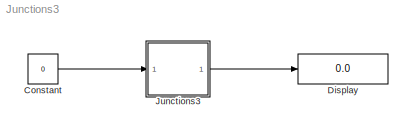
MODEL Junctions3
KIND model
CONFIG AbsTol = auto
CONFIG FixedStep = auto
CONFIG MaxStep = auto
CONFIG MinStep = auto
CONFIG RelTol = 1e-3
CONFIG Solver = ode45
CONFIG SolverMode = Auto
CONFIG StartTime = 0.0
CONFIG StopTime = 10.0
BLOCK [Constant] Constant
  Value = 0
BLOCK [Display] Display
  Decimation = 1
  Format = long
  Ports = [1]
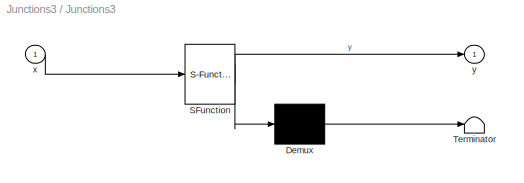
BLOCK [SubSystem] Junctions3
  MaskDescription = Stateflow diagram
  MaskDisplay = plot(sf('Private','sfblk','xIcon'),sf('Private','sfblk','yIcon'));text(0.5,0,sf('Private', 'sfblk', 'tIcon'),'HorizontalAl','Center','VerticalAl','Bottom');
  MaskIconFrame = off
  MaskIconOpaque = off
  MaskIconRotate = none
  MaskIconUnits = autoscale
  MaskSelfModifiable = on
  MaskType = Stateflow
  Ports = [1, 1]
  TreatAsAtomicUnit = off
BLOCK [Demux] Junctions3/ Demux 
  Outputs = 1
  Ports = [1, 1]
BLOCK [S-Function] Junctions3/ SFunction 
  FunctionName = sf_sfun
  PortCounts = [1 2]
  Ports = [1, 2]
  Tag = Stateflow S-Function Junctions3 1
BLOCK [Terminator] Junctions3/ Terminator 
BLOCK [Inport] Junctions3/x
  PortDimensions = 1
BLOCK [Outport] Junctions3/y
LINE Constant:1 -> Junctions3:1
LINE Junctions3/ Demux :1 -> Junctions3/ Terminator :1
LINE Junctions3/ SFunction :1 -> Junctions3/ Demux :1
LINE Junctions3/ SFunction :2 -> Junctions3/y:1
LINE Junctions3/x:1 -> Junctions3/ SFunction :1
LINE Junctions3:1 -> Display:1
CHART Junctions3 states=2 transitions=6
  STATE_LABEL 'A'
  STATE_LABEL 'B'
